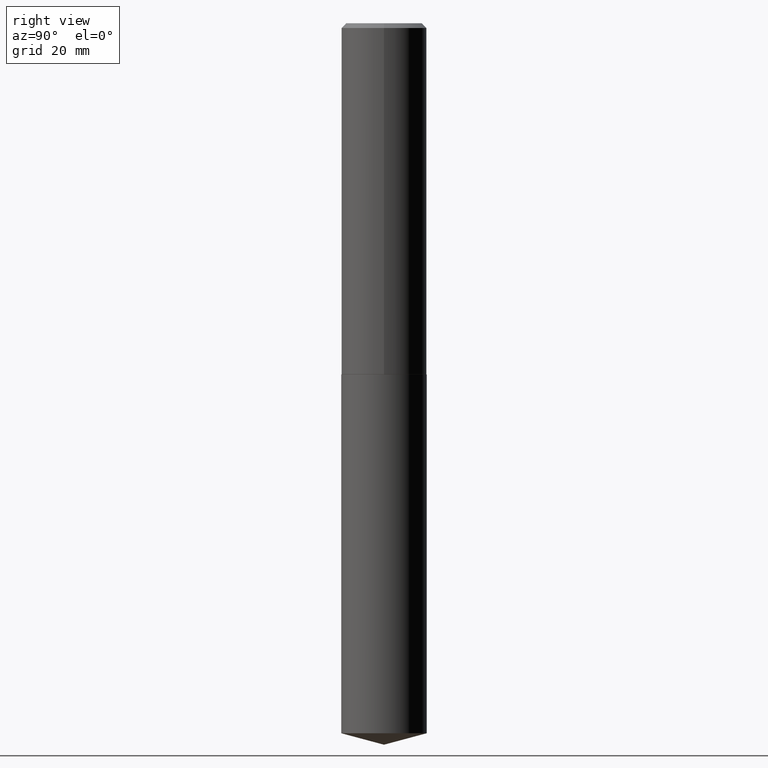
[diagram: clean part render]
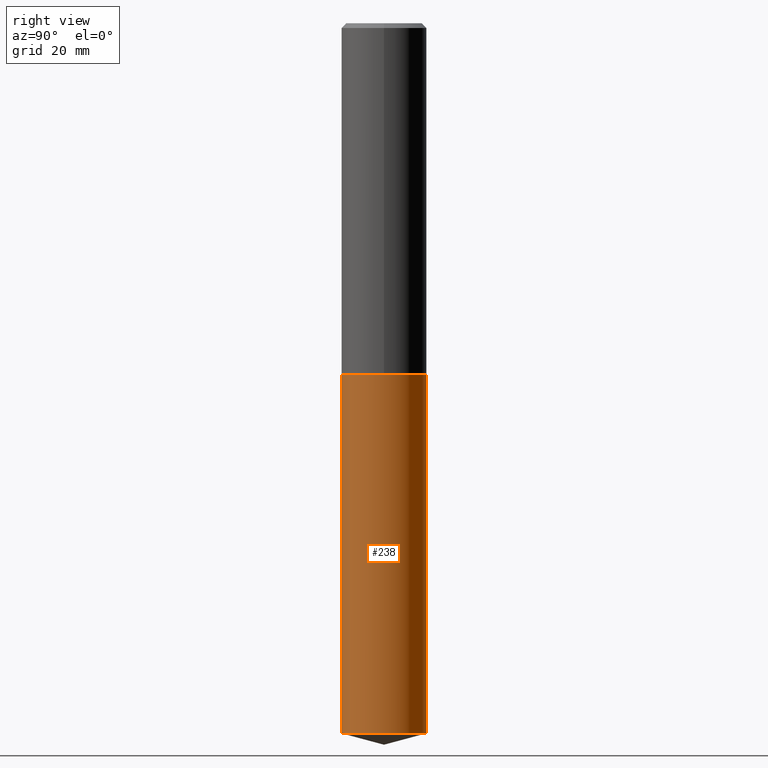
[diagram: same view with one face highlighted and labeled with its STEP entity id]
A machine part, right view. The second image highlights one B-rep face of the part: STEP entity #238.
In plain terms, the highlighted cylindrical surface (partial cylindrical patch) has radius 7.1437 mm, axis along (-0, 0, 1).
Its self-contained STEP definition (entity closure, byte-faithful):
#21 = VERTEX_POINT ( 'NONE', #29 ) ;
#22 = CARTESIAN_POINT ( 'NONE',  ( -1.963958253099205714E-15, -0.2812500000000080491, -2.312499999999999112 ) ) ;
#29 = CARTESIAN_POINT ( 'NONE',  ( -1.963958253099147733E-15, -0.2812500000000163203, -4.674639289628746752 ) ) ;
#34 = LINE ( 'NONE', #207, #373 ) ;
#39 = DIRECTION ( 'NONE',  ( -2.445543017653500849E-29, 3.491375063796593524E-15, 1.000000000000000000 ) ) ;
#44 = AXIS2_PLACEMENT_3D ( 'NONE', #131, #256, #374 ) ;
#47 = ORIENTED_EDGE ( 'NONE', *, *, #246, .T. ) ;
#69 = CYLINDRICAL_SURFACE ( 'NONE', #280, 0.2812500000000000000 ) ;
#72 = CARTESIAN_POINT ( 'NONE',  ( 1.998401444325338176E-15, 0.2812499999999919509, -2.312500000000000888 ) ) ;
#89 = EDGE_CURVE ( 'NONE', #21, #347, #34, .T. ) ;
#92 = VECTOR ( 'NONE', #127, 39.37007874015748143 ) ;
#127 = DIRECTION ( 'NONE',  ( -2.445543017653501129E-29, 3.491375063796593524E-15, 1.000000000000000000 ) ) ;
#128 = AXIS2_PLACEMENT_3D ( 'NONE', #308, #39, #282 ) ;
#131 = CARTESIAN_POINT ( 'NONE',  ( 1.143185986077971109E-28, -1.632116480909878347E-14, -4.674639289628747640 ) ) ;
#146 = DIRECTION ( 'NONE',  ( -2.445543017653501129E-29, 3.491375063796593524E-15, 1.000000000000000000 ) ) ;
#150 = EDGE_LOOP ( 'NONE', ( #47, #388, #323, #195 ) ) ;
#159 = DIRECTION ( 'NONE',  ( -6.982962677686266711E-15, -1.000000000000000000, 3.885294924322507688E-15 ) ) ;
#164 = VERTEX_POINT ( 'NONE', #189 ) ;
#189 = CARTESIAN_POINT ( 'NONE',  ( 1.998401444325395763E-15, 0.2812499999999836242, -4.674639289628748529 ) ) ;
#192 = EDGE_CURVE ( 'NONE', #347, #227, #297, .T. ) ;
#195 = ORIENTED_EDGE ( 'NONE', *, *, #89, .F. ) ;
#202 = EDGE_CURVE ( 'NONE', #164, #227, #338, .T. ) ;
#207 = CARTESIAN_POINT ( 'NONE',  ( -1.963958253099205714E-15, -0.2812500000000080491, -2.312499999999999112 ) ) ;
#217 = CARTESIAN_POINT ( 'NONE',  ( 1.998401444325396158E-15, 0.2812499999999919509, -2.312500000000000888 ) ) ;
#221 = CARTESIAN_POINT ( 'NONE',  ( 5.655146614303128380E-29, -8.074050596074775072E-15, -2.312500000000000000 ) ) ;
#227 = VERTEX_POINT ( 'NONE', #217 ) ;
#238 = ADVANCED_FACE ( 'NONE', ( #335 ), #69, .T. ) ;
#246 = EDGE_CURVE ( 'NONE', #21, #164, #314, .T. ) ;
#256 = DIRECTION ( 'NONE',  ( -2.445543017653500849E-29, 3.491375063796593524E-15, 1.000000000000000000 ) ) ;
#280 = AXIS2_PLACEMENT_3D ( 'NONE', #221, #312, #159 ) ;
#282 = DIRECTION ( 'NONE',  ( -6.982962677686266711E-15, -1.000000000000000000, 3.885294924322507688E-15 ) ) ;
#297 = CIRCLE ( 'NONE', #128, 0.2812500000000000000 ) ;
#308 = CARTESIAN_POINT ( 'NONE',  ( 5.655146614303128380E-29, -8.074050596074775072E-15, -2.312500000000000000 ) ) ;
#312 = DIRECTION ( 'NONE',  ( -2.445543017653500849E-29, 3.491375063796593524E-15, 1.000000000000000000 ) ) ;
#314 = CIRCLE ( 'NONE', #44, 0.2812500000000000000 ) ;
#323 = ORIENTED_EDGE ( 'NONE', *, *, #192, .F. ) ;
#335 = FACE_OUTER_BOUND ( 'NONE', #150, .T. ) ;
#338 = LINE ( 'NONE', #72, #92 ) ;
#347 = VERTEX_POINT ( 'NONE', #22 ) ;
#373 = VECTOR ( 'NONE', #146, 39.37007874015748143 ) ;
#374 = DIRECTION ( 'NONE',  ( -6.982962677686266711E-15, -1.000000000000000000, 3.885294924322507688E-15 ) ) ;
#388 = ORIENTED_EDGE ( 'NONE', *, *, #202, .T. ) ;